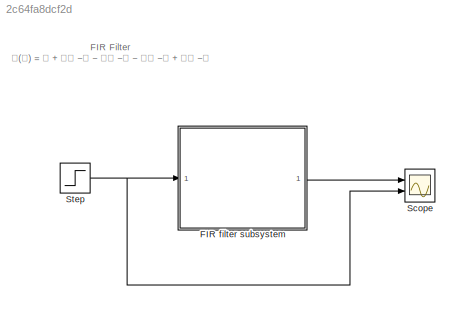
MODEL slx_2c64fa8dcf2d
KIND model
CONFIG AbsTol = auto
CONFIG EnableMultiTasking = off
CONFIG FixedStep = auto
CONFIG MaxStep = auto
CONFIG MinStep = auto
CONFIG RelTol = 1e-3
CONFIG SampleTimeConstraint = Unconstrained
CONFIG SolverName = VariableStepAuto
CONFIG StartTime = 0.0
CONFIG StopTime = 10.0
BLOCK [ModelReference] FIR filter subsystem
  ModelNameDialog = Subsystem0
  ModelReferenceVersion = 1.3
  Ports = [1, 1]
BLOCK [Scope] Scope
  Floating = off
  NumInputPorts = 2
  Ports = [2]
  ScopeSpecificationString = Simulink.scopes.TimeScopeBlockCfg('CurrentConfiguration', extmgr.ConfigurationSet(extmgr.Configuration('Core','General UI',true),extmgr.Configuration('Core','Source UI',true),extmgr.Configuration('Sources','WiredSimulink',true),extmgr.Configuration('Visuals','Time Domain',true,'SerializedDisplays',{struct('MinYLimReal','-4.875','MaxYLimReal','3.875','YLabelReal','','MinYLimMag','0.00000','MaxYLimM...<+1994ch>
BLOCK [Step] Step
  SampleTime = 0
ANNOTATION (root): FIR Filter 𝐇(𝐳) = 𝟏 + 𝟐𝐳 −𝟏 − 𝟑𝐳 −𝟐 − 𝟒𝐳 −𝟑 + 𝟓𝐳 −𝟒
LINE FIR filter subsystem:1 -> Scope:1
NET Step:1 -> FIR filter subsystem:1, Scope:2
note: NET lines group one-source signal fan-out (src -> all destinations, sorted); 1:1 wires keep LINE
